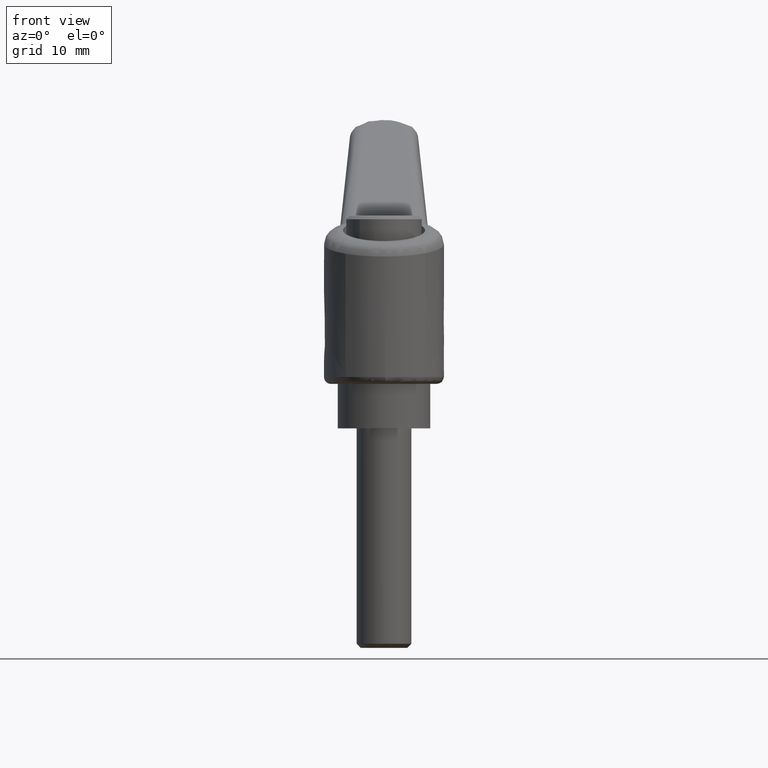
[diagram: clean part render]
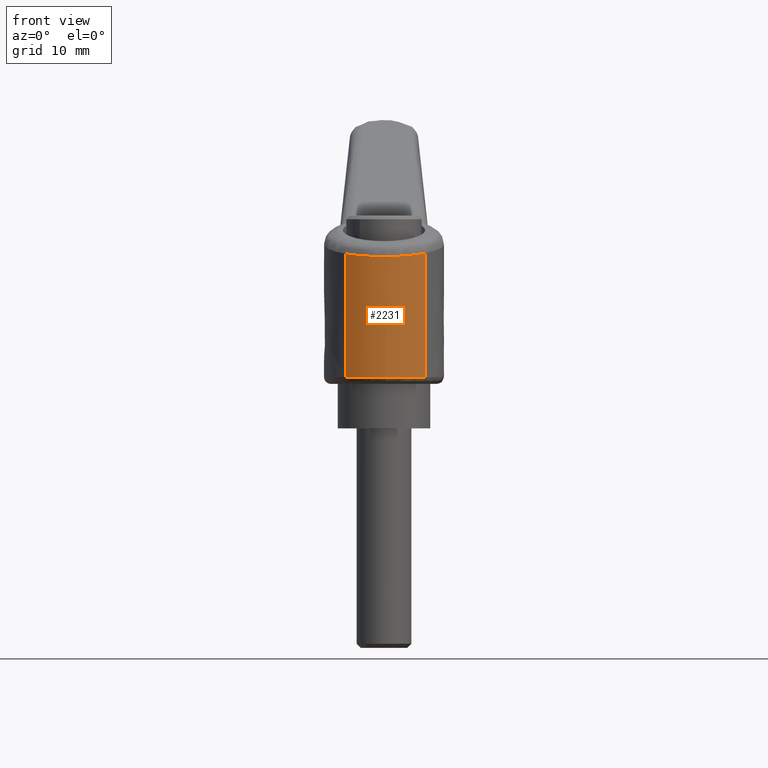
[diagram: same view with one face highlighted and labeled with its STEP entity id]
A machine part, front view. The second image highlights one B-rep face of the part: STEP entity #2231.
In plain terms, the highlighted face is a freeform B-spline surface patch.
Its self-contained STEP definition (entity closure, byte-faithful):
#2028=CARTESIAN_POINT('',(-6.708743602364807,5.617406810773925,25.476228958721020));
#2029=VERTEX_POINT('',#2028);
#2078=CARTESIAN_POINT('',(-6.354468670888410,-6.015249613301948,25.548607935730661));
#2079=VERTEX_POINT('',#2078);
#2093=CARTESIAN_POINT('',(-6.354455691114207,-6.015263325047886,7.499999999990987));
#2094=VERTEX_POINT('',#2093);
#2095=CARTESIAN_POINT('',(-6.354468670888410,-6.015249613301948,25.548607935730661));
#2096=CARTESIAN_POINT('',(-6.354455691114207,-6.015263325047886,7.499999999990987));
#2097=QUASI_UNIFORM_CURVE('',1,(#2095,#2096),.UNSPECIFIED.,.F.,.U.);
#2098=EDGE_CURVE('',#2079,#2094,#2097,.T.);
#2148=CARTESIAN_POINT('',(-6.708743613358527,5.617406797636937,7.499999999993854));
#2149=VERTEX_POINT('',#2148);
#2161=CARTESIAN_POINT('',(-6.708743602364807,5.617406810773925,25.476228958721020));
#2162=CARTESIAN_POINT('',(-6.708743613358527,5.617406797636937,7.499999999993854));
#2163=QUASI_UNIFORM_CURVE('',1,(#2161,#2162),.UNSPECIFIED.,.F.,.U.);
#2164=EDGE_CURVE('',#2029,#2149,#2163,.T.);
#2169=CARTESIAN_POINT('',(-6.354455474775229,-6.015263553585919,26.450136864494549));
#2170=CARTESIAN_POINT('',(-11.710997709632817,-0.356673730058685,26.450136864494553));
#2171=CARTESIAN_POINT('',(-6.708743641801988,5.617406763674977,26.450136864494549));
#2172=CARTESIAN_POINT('',(-6.354455474775229,-6.015263553585919,6.976085994856934));
#2173=CARTESIAN_POINT('',(-11.710997709632814,-0.356673730058685,6.976085994856935));
#2174=CARTESIAN_POINT('',(-6.708743641801988,5.617406763674977,6.976085994856934));
#2182=(BOUNDED_SURFACE()B_SPLINE_SURFACE(2,1,((#2169,#2172),(#2170,#2173),(#2171,#2174)),.UNSPECIFIED.,.F.,.F.,.U.)B_SPLINE_SURFACE_WITH_KNOTS((3,3),(2,2),(0.0,13.323047047408100),(0.0,19.474050869637619),.UNSPECIFIED.)GEOMETRIC_REPRESENTATION_ITEM()RATIONAL_B_SPLINE_SURFACE(((1.0,1.0),(0.730538240084350,0.730538240084350),(0.956886115850880,0.956886115850880)))REPRESENTATION_ITEM('')SURFACE());
#2183=CARTESIAN_POINT('',(-6.354468670888410,-6.015249613301948,25.548607935730665));
#2184=CARTESIAN_POINT('',(-6.395732246608587,-5.971659063522899,25.540178553672135));
#2185=CARTESIAN_POINT('',(-6.436393919796870,-5.927506520684485,25.531872128355801));
#2186=CARTESIAN_POINT('',(-11.642315945486645,-0.274647766240932,24.468398859343647));
#2187=CARTESIAN_POINT('',(-6.708743602364807,5.617406810773925,25.476228958721023));
#2195=(BOUNDED_CURVE()B_SPLINE_CURVE(2,(#2183,#2184,#2185,#2186,#2187),.UNSPECIFIED.,.F.,.U.)B_SPLINE_CURVE_WITH_KNOTS((3,2,3),(0.329966926407927,0.333333333333333,0.655164718706690),.UNSPECIFIED.)CURVE()GEOMETRIC_REPRESENTATION_ITEM()RATIONAL_B_SPLINE_CURVE((0.994713222620560,0.997329642783196,1.0,0.744711562930859,0.982382114092282))REPRESENTATION_ITEM(''));
#2196=EDGE_CURVE('',#2079,#2029,#2195,.T.);
#2197=ORIENTED_EDGE('',*,*,#2196,.T.);
#2198=ORIENTED_EDGE('',*,*,#2164,.T.);
#2199=CARTESIAN_POINT('',(-8.750000000000000,0.0,7.500000000000000));
#2200=VERTEX_POINT('',#2199);
#2201=CARTESIAN_POINT('',(-6.708743613358527,5.617406797636937,7.499999999993854));
#2202=CARTESIAN_POINT('',(-7.096332688281192,5.154675399607871,7.499999999995013));
#2203=CARTESIAN_POINT('',(-7.650008912396768,4.333867709160257,7.499999999996711));
#2204=CARTESIAN_POINT('',(-8.266696132122112,2.970541595059134,7.499999999998502));
#2205=CARTESIAN_POINT('',(-8.652638333048671,1.588406185604482,7.499999999999740));
#2206=CARTESIAN_POINT('',(-8.750057189704569,0.540067124000849,7.499999999999985));
#2207=CARTESIAN_POINT('',(-8.750000000000000,0.0,7.500000000000000));
#2208=B_SPLINE_CURVE_WITH_KNOTS('',3,(#2201,#2202,#2203,#2204,#2205,#2206,#2207),.UNSPECIFIED.,.F.,.U.,(4,1,1,1,4),(9.287413E-009,1.810811966250030,2.954484477620174,4.479370337276516,6.099568520946106),.UNSPECIFIED.);
#2209=EDGE_CURVE('',#2149,#2200,#2208,.T.);
#2210=ORIENTED_EDGE('',*,*,#2209,.T.);
#2211=CARTESIAN_POINT('',(-8.747236656228873,-0.219888335129219,7.499999999982748));
#2212=VERTEX_POINT('',#2211);
#2213=CARTESIAN_POINT('',(-8.750000000000000,0.0,7.500000000000000));
#2214=CARTESIAN_POINT('',(-8.747236656228873,-0.219888335129219,7.499999999982748));
#2215=QUASI_UNIFORM_CURVE('',1,(#2213,#2214),.UNSPECIFIED.,.F.,.U.);
#2216=EDGE_CURVE('',#2200,#2212,#2215,.T.);
#2217=ORIENTED_EDGE('',*,*,#2216,.T.);
#2218=CARTESIAN_POINT('',(-8.747236656228873,-0.219888335129219,7.499999999982748));
#2219=CARTESIAN_POINT('',(-8.736345928901706,-0.653928087473862,7.499999999983191));
#2220=CARTESIAN_POINT('',(-8.646428375147830,-1.553695448144906,7.499999999984209));
#2221=CARTESIAN_POINT('',(-8.250627340244799,-3.077929208720498,7.499999999986126));
#2222=CARTESIAN_POINT('',(-7.506703321630031,-4.622601768478766,7.499999999988467));
#2223=CARTESIAN_POINT('',(-6.744808066599187,-5.602971352257833,7.499999999990120));
#2224=CARTESIAN_POINT('',(-6.354455691114207,-6.015263325047886,7.499999999990987));
#2225=B_SPLINE_CURVE_WITH_KNOTS('',3,(#2218,#2219,#2220,#2221,#2222,#2223,#2224),.UNSPECIFIED.,.F.,.U.,(4,1,1,1,4),(6.557025E-009,1.302533802497732,2.705274645835866,4.709166462384086,6.412482208577240),.UNSPECIFIED.);
#2226=EDGE_CURVE('',#2212,#2094,#2225,.T.);
#2227=ORIENTED_EDGE('',*,*,#2226,.T.);
#2228=ORIENTED_EDGE('',*,*,#2098,.F.);
#2229=EDGE_LOOP('',(#2197,#2198,#2210,#2217,#2227,#2228));
#2230=FACE_OUTER_BOUND('',#2229,.T.);
#2231=ADVANCED_FACE('',(#2230),#2182,.T.);